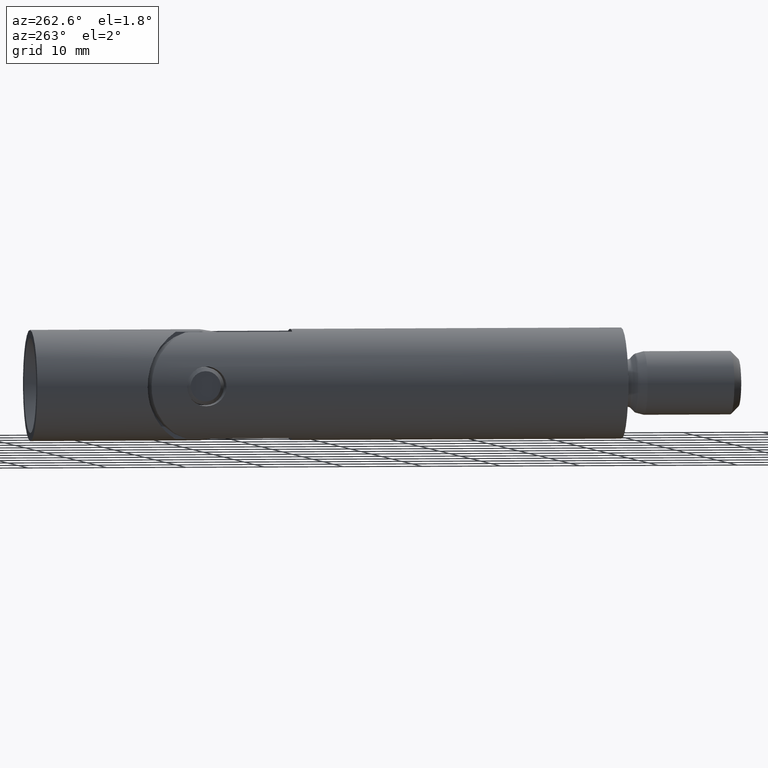
[diagram: clean part render]
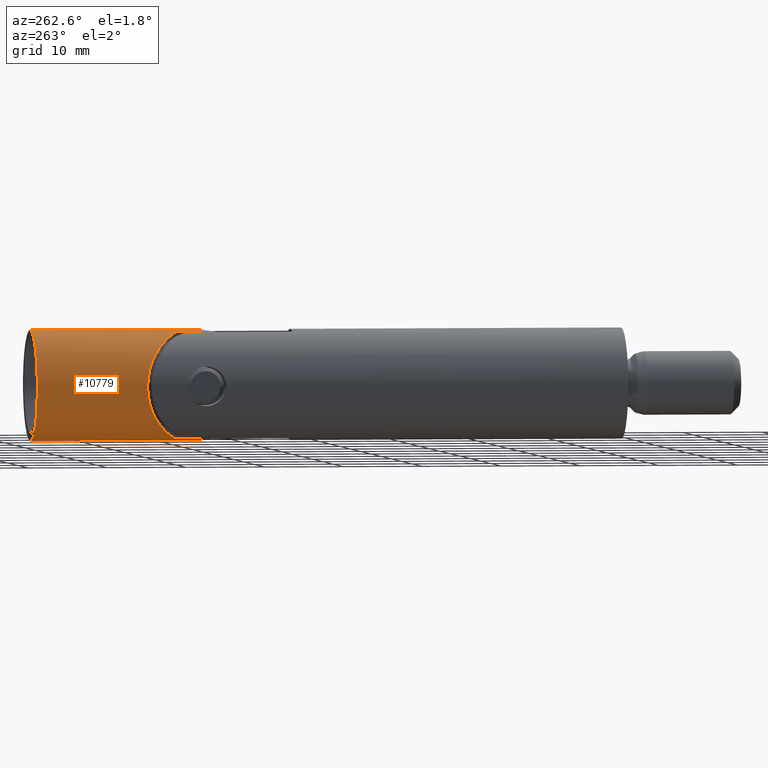
[diagram: same view with one face highlighted and labeled with its STEP entity id]
A machine part, auxiliary view. The second image highlights one B-rep face of the part: STEP entity #10779.
In plain terms, the highlighted cylindrical surface (partial cylindrical patch) has radius 7 mm, axis along (-0, -1, -0).
Its self-contained STEP definition (entity closure, byte-faithful):
#60 = CYLINDRICAL_SURFACE ( 'NONE', #4830, 7.000000000000000000 ) ;
#461 = CARTESIAN_POINT ( 'NONE',  ( 8.572527594031471200E-016, 28.49999999999999600, 7.000000000000000000 ) ) ;
#622 = VERTEX_POINT ( 'NONE', #16859 ) ;
#857 = CARTESIAN_POINT ( 'NONE',  ( -4.091997679669152200, 11.89550207808535900, 5.690031775713134000 ) ) ;
#897 = CARTESIAN_POINT ( 'NONE',  ( -1.869999999999998300, 10.27824648249639400, 6.745598564990358700 ) ) ;
#1101 = CARTESIAN_POINT ( 'NONE',  ( -2.232222779690817800, 10.48486810220633600, 6.645183962565406300 ) ) ;
#1269 = CARTESIAN_POINT ( 'NONE',  ( -5.175268618100256300, 12.83288688309842800, -4.727790351832044100 ) ) ;
#1319 = CARTESIAN_POINT ( 'NONE',  ( -6.954558754311911200, 14.45760298298686500, -0.8244721171362998600 ) ) ;
#1343 = DIRECTION ( 'NONE',  ( 0.0000000000000000000, 1.000000000000000000, 0.0000000000000000000 ) ) ;
#1375 = CARTESIAN_POINT ( 'NONE',  ( -6.696729621470672600, 14.21774042995097700, -2.048589023633526000 ) ) ;
#1445 = VECTOR ( 'NONE', #15742, 1000.000000000000000 ) ;
#2264 = CARTESIAN_POINT ( 'NONE',  ( 0.0000000000000000000, 28.49999999999999600, -7.000000000000000000 ) ) ;
#2397 = CIRCLE ( 'NONE', #9668, 7.000000000000000000 ) ;
#2442 = DIRECTION ( 'NONE',  ( 0.0000000000000000000, 0.0000000000000000000, -1.000000000000000000 ) ) ;
#2445 = DIRECTION ( 'NONE',  ( 0.0000000000000000000, 1.000000000000000000, 0.0000000000000000000 ) ) ;
#2453 = CARTESIAN_POINT ( 'NONE',  ( -6.396587538579066900, 13.94011484652583900, 2.850110027396211900 ) ) ;
#2569 = CARTESIAN_POINT ( 'NONE',  ( -6.991893741852941900, 14.49243170686529700, -0.3988278347223836500 ) ) ;
#2625 = CARTESIAN_POINT ( 'NONE',  ( -3.520633913200297700, 11.42901415284270300, -6.060351834619607000 ) ) ;
#2695 = LINE ( 'NONE', #6905, #4445 ) ;
#2730 = CARTESIAN_POINT ( 'NONE',  ( -2.231929679439918200, 10.48470090993690300, -6.645265215172405400 ) ) ;
#3019 = VERTEX_POINT ( 'NONE', #15500 ) ;
#3156 = VERTEX_POINT ( 'NONE', #897 ) ;
#3319 = LINE ( 'NONE', #4137, #14375 ) ;
#3459 = ORIENTED_EDGE ( 'NONE', *, *, #4825, .T. ) ;
#3595 = CARTESIAN_POINT ( 'NONE',  ( -6.131654851988760600, 13.69668656183775500, 3.382284619595411300 ) ) ;
#3655 = CARTESIAN_POINT ( 'NONE',  ( -3.204452162761714200, 11.17984585495174300, 6.233310815406204200 ) ) ;
#3720 = CARTESIAN_POINT ( 'NONE',  ( -3.507954435931388600, 11.41896366931106300, 6.067549941654552200 ) ) ;
#4027 = CARTESIAN_POINT ( 'NONE',  ( -6.632971604203731900, 14.15860253157560000, -2.246116756065415800 ) ) ;
#4119 = VERTEX_POINT ( 'NONE', #17847 ) ;
#4137 = CARTESIAN_POINT ( 'NONE',  ( 0.0000000000000000000, 28.49999999999999600, -7.000000000000000000 ) ) ;
#4445 = VECTOR ( 'NONE', #1343, 1000.000000000000000 ) ;
#4592 = DIRECTION ( 'NONE',  ( -0.0000000000000000000, -1.000000000000000000, -0.0000000000000000000 ) ) ;
#4631 = EDGE_LOOP ( 'NONE', ( #16417, #13032, #3459, #7580, #6911, #7942, #14020, #11362 ) ) ;
#4825 = EDGE_CURVE ( 'NONE', #12317, #14445, #3319, .T. ) ;
#4830 = AXIS2_PLACEMENT_3D ( 'NONE', #5386, #6735, #17782 ) ;
#5317 = CARTESIAN_POINT ( 'NONE',  ( 0.0000000000000000000, 28.49999999999999600, 0.0000000000000000000 ) ) ;
#5386 = CARTESIAN_POINT ( 'NONE',  ( 0.0000000000000000000, 28.49999999999999600, 0.0000000000000000000 ) ) ;
#6335 = CARTESIAN_POINT ( 'NONE',  ( -5.158722917360798900, 12.81821483151873600, 4.745580836556971600 ) ) ;
#6459 = CARTESIAN_POINT ( 'NONE',  ( -4.908671774981572300, 12.59705844197533900, 5.003246425954411200 ) ) ;
#6570 = CARTESIAN_POINT ( 'NONE',  ( 0.0000000000000000000, 7.000000000000006200, 0.0000000000000000000 ) ) ;
#6644 = CARTESIAN_POINT ( 'NONE',  ( -5.854240371323047800, 13.44360376749639300, -3.842349211507384500 ) ) ;
#6735 = DIRECTION ( 'NONE',  ( -0.0000000000000000000, -1.000000000000000000, -0.0000000000000000000 ) ) ;
#6820 = CARTESIAN_POINT ( 'NONE',  ( -6.842019866135717400, 14.35275706316291500, 1.493728750700347800 ) ) ;
#6905 = CARTESIAN_POINT ( 'NONE',  ( -1.869999999999998300, 28.49999999999999600, 6.745598564990358700 ) ) ;
#6911 = ORIENTED_EDGE ( 'NONE', *, *, #7608, .F. ) ;
#7474 = EDGE_CURVE ( 'NONE', #12317, #4119, #2397, .T. ) ;
#7580 = ORIENTED_EDGE ( 'NONE', *, *, #10428, .T. ) ;
#7608 = EDGE_CURVE ( 'NONE', #3019, #16128, #16664, .T. ) ;
#7634 = CIRCLE ( 'NONE', #11708, 7.000000000000000000 ) ;
#7835 = CARTESIAN_POINT ( 'NONE',  ( 0.0000000000000000000, 7.000000000000006200, 0.0000000000000000000 ) ) ;
#7942 = ORIENTED_EDGE ( 'NONE', *, *, #13251, .F. ) ;
#8027 = CARTESIAN_POINT ( 'NONE',  ( -6.793838014521781200, 14.30792750283111300, 1.698917349309829500 ) ) ;
#8082 = CARTESIAN_POINT ( 'NONE',  ( -7.000796609128578900, 14.50074350105116100, -0.1840429518579077000 ) ) ;
#8145 = CARTESIAN_POINT ( 'NONE',  ( -6.926400498339865500, 14.43134183356609800, -1.033850297823969000 ) ) ;
#8198 = CARTESIAN_POINT ( 'NONE',  ( -4.108124291350662800, 11.90897019837056100, -5.678559880547877200 ) ) ;
#8254 = CARTESIAN_POINT ( 'NONE',  ( -5.525644809559128800, 13.14654712759854100, -4.301290638713528100 ) ) ;
#8458 = FACE_OUTER_BOUND ( 'NONE', #4631, .T. ) ;
#8801 = LINE ( 'NONE', #461, #1445 ) ;
#9362 = CARTESIAN_POINT ( 'NONE',  ( -2.566222363606454100, 10.71323240953255900, 6.522053370328574600 ) ) ;
#9542 = B_SPLINE_CURVE_WITH_KNOTS ( 'NONE', 3,
 ( #11944, #1101, #9362, #3655, #3720, #857, #10745, #6459, #6335, #16130, #17514, #3595, #13427, #2453, #13769, #16307, #13713, #8027, #6820, #16368, #13656, #8082, #2569, #1319, #8145, #13830, #9584, #1375, #4027, #14926, #15093, #12233, #6644, #17700, #8254, #1269, #16426, #15146, #8198, #2625, #16484, #17748, #2730, #17805 ),
 .UNSPECIFIED., .F., .F.,
 ( 4, 2, 2, 2, 2, 2, 2, 2, 2, 2, 2, 2, 2, 2, 2, 2, 2, 2, 2, 2, 2, 4 ),
 ( 0.0000000000000000000, 0.001260948252017357300, 0.002521896504034714600, 0.003782844756052072100, 0.005043793008069429200, 0.006304741260086786300, 0.006935215386095464400, 0.007565689512104141700, 0.008196163638112818900, 0.008826637764121497000, 0.01008758601613885100, 0.01071806014214753000, 0.01134853426815620900, 0.01197900839416488800, 0.01260948252017356600, 0.01387043077219092200, 0.01450090489819960000, 0.01513137902420828200, 0.01639232727622564100, 0.01765327552824300100, 0.01891422378026036100, 0.02017517203227771700 ),
 .UNSPECIFIED. ) ;
#9584 = CARTESIAN_POINT ( 'NONE',  ( -6.806144451631310800, 14.31937098305160900, -1.649030719654074600 ) ) ;
#9668 = AXIS2_PLACEMENT_3D ( 'NONE', #5317, #13800, #10888 ) ;
#10419 = CARTESIAN_POINT ( 'NONE',  ( -1.869999999999998300, 7.000000000000006200, -6.745598564990358700 ) ) ;
#10428 = EDGE_CURVE ( 'NONE', #14445, #16128, #7634, .T. ) ;
#10745 = CARTESIAN_POINT ( 'NONE',  ( -4.374011456896902800, 12.13458672469868900, 5.476819986840989300 ) ) ;
#10779 = ADVANCED_FACE ( 'NONE', ( #8458 ), #60, .T. ) ;
#10869 = CARTESIAN_POINT ( 'NONE',  ( -1.869999999999998300, 7.000000000000006200, 6.745598564990358700 ) ) ;
#10888 = DIRECTION ( 'NONE',  ( 0.0000000000000000000, 0.0000000000000000000, 1.000000000000000000 ) ) ;
#11362 = ORIENTED_EDGE ( 'NONE', *, *, #12511, .T. ) ;
#11708 = AXIS2_PLACEMENT_3D ( 'NONE', #6570, #13472, #2442 ) ;
#11944 = CARTESIAN_POINT ( 'NONE',  ( -1.869999999999998300, 10.27824648249639400, 6.745598564990358700 ) ) ;
#12233 = CARTESIAN_POINT ( 'NONE',  ( -5.958167951393188700, 13.53821051843821400, -3.679402157807253100 ) ) ;
#12317 = VERTEX_POINT ( 'NONE', #2264 ) ;
#12511 = EDGE_CURVE ( 'NONE', #15823, #622, #16379, .T. ) ;
#12975 = CARTESIAN_POINT ( 'NONE',  ( 0.0000000000000000000, 7.000000000000006200, -7.000000000000000000 ) ) ;
#13032 = ORIENTED_EDGE ( 'NONE', *, *, #7474, .F. ) ;
#13251 = EDGE_CURVE ( 'NONE', #3156, #3019, #9542, .T. ) ;
#13427 = CARTESIAN_POINT ( 'NONE',  ( -6.224664799307171300, 13.78198450366831200, 3.208271722163764200 ) ) ;
#13472 = DIRECTION ( 'NONE',  ( 0.0000000000000000000, 1.000000000000000000, 0.0000000000000000000 ) ) ;
#13656 = CARTESIAN_POINT ( 'NONE',  ( -6.998237021894412100, 14.49835455545503000, 0.4525245489973062600 ) ) ;
#13713 = CARTESIAN_POINT ( 'NONE',  ( -6.682000951160639500, 14.20407566106755000, 2.096048285711826800 ) ) ;
#13769 = CARTESIAN_POINT ( 'NONE',  ( -6.475397021665897600, 14.01284749487702700, 2.666432615553185200 ) ) ;
#13800 = DIRECTION ( 'NONE',  ( 0.0000000000000000000, 1.000000000000000000, 0.0000000000000000000 ) ) ;
#13830 = CARTESIAN_POINT ( 'NONE',  ( -6.852195092240845200, 14.36222759537059600, -1.446130256783222400 ) ) ;
#14020 = ORIENTED_EDGE ( 'NONE', *, *, #17472, .F. ) ;
#14375 = VECTOR ( 'NONE', #17755, 1000.000000000000000 ) ;
#14387 = CARTESIAN_POINT ( 'NONE',  ( -1.869999999999998300, 28.49999999999999600, -6.745598564990358700 ) ) ;
#14445 = VERTEX_POINT ( 'NONE', #12975 ) ;
#14507 = VECTOR ( 'NONE', #4592, 1000.000000000000000 ) ;
#14791 = DIRECTION ( 'NONE',  ( 5.329070518200750600E-015, 0.0000000000000000000, -1.000000000000000000 ) ) ;
#14926 = CARTESIAN_POINT ( 'NONE',  ( -6.420604678543759800, 13.96213157371849100, -2.818021770332048300 ) ) ;
#15093 = CARTESIAN_POINT ( 'NONE',  ( -6.250608384525462700, 13.80542658195135900, -3.175052303008700800 ) ) ;
#15146 = CARTESIAN_POINT ( 'NONE',  ( -4.391495753501880400, 12.14950710368595200, -5.462820688665710900 ) ) ;
#15390 = AXIS2_PLACEMENT_3D ( 'NONE', #7835, #2445, #14791 ) ;
#15500 = CARTESIAN_POINT ( 'NONE',  ( -1.869999999999998300, 10.27824648249639400, -6.745598564990358700 ) ) ;
#15742 = DIRECTION ( 'NONE',  ( -0.0000000000000000000, -1.000000000000000000, -0.0000000000000000000 ) ) ;
#15823 = VERTEX_POINT ( 'NONE', #10869 ) ;
#16128 = VERTEX_POINT ( 'NONE', #10419 ) ;
#16130 = CARTESIAN_POINT ( 'NONE',  ( -5.623867894344011900, 13.23434774299881800, 4.183906012492022900 ) ) ;
#16307 = CARTESIAN_POINT ( 'NONE',  ( -6.618102049652096100, 14.14482596973591400, 2.289400520196521100 ) ) ;
#16368 = CARTESIAN_POINT ( 'NONE',  ( -6.958274881665852600, 14.46101813789559600, 0.8719268250471152700 ) ) ;
#16379 = CIRCLE ( 'NONE', #15390, 7.000000000000000000 ) ;
#16417 = ORIENTED_EDGE ( 'NONE', *, *, #16492, .F. ) ;
#16426 = CARTESIAN_POINT ( 'NONE',  ( -4.924862302999999400, 12.61127945850119900, -4.987321538263669800 ) ) ;
#16484 = CARTESIAN_POINT ( 'NONE',  ( -3.214992365047502100, 11.18785072850655900, -6.228062241702699200 ) ) ;
#16492 = EDGE_CURVE ( 'NONE', #4119, #622, #8801, .T. ) ;
#16664 = LINE ( 'NONE', #14387, #14507 ) ;
#16859 = CARTESIAN_POINT ( 'NONE',  ( 8.572527594031471200E-016, 7.000000000000006200, 7.000000000000000000 ) ) ;
#17472 = EDGE_CURVE ( 'NONE', #15823, #3156, #2695, .T. ) ;
#17514 = CARTESIAN_POINT ( 'NONE',  ( -5.838991746425132400, 13.42942480702161700, 3.879991916570842300 ) ) ;
#17700 = CARTESIAN_POINT ( 'NONE',  ( -5.638197344332716900, 13.24797314982272000, -4.152891582350726200 ) ) ;
#17748 = CARTESIAN_POINT ( 'NONE',  ( -2.571272951763543500, 10.71663320888811900, -6.520237004999570400 ) ) ;
#17755 = DIRECTION ( 'NONE',  ( -0.0000000000000000000, -1.000000000000000000, -0.0000000000000000000 ) ) ;
#17782 = DIRECTION ( 'NONE',  ( 0.0000000000000000000, 0.0000000000000000000, -1.000000000000000000 ) ) ;
#17805 = CARTESIAN_POINT ( 'NONE',  ( -1.869999999999998300, 10.27824648249639400, -6.745598564990358700 ) ) ;
#17847 = CARTESIAN_POINT ( 'NONE',  ( 8.572527594031471200E-016, 28.49999999999999600, 7.000000000000000000 ) ) ;